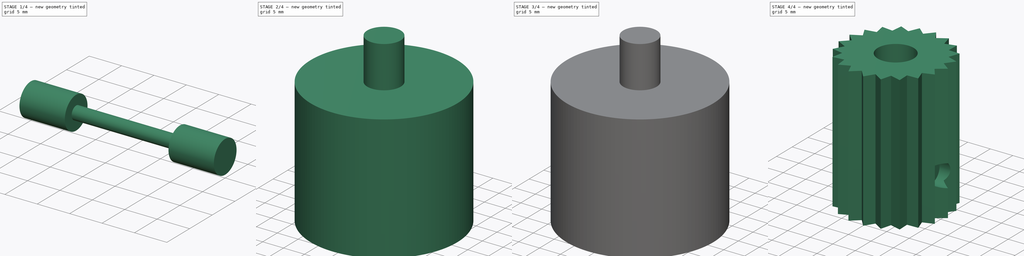
[diagram: build sequence overview — one tinted view per stage of 4, left to right]
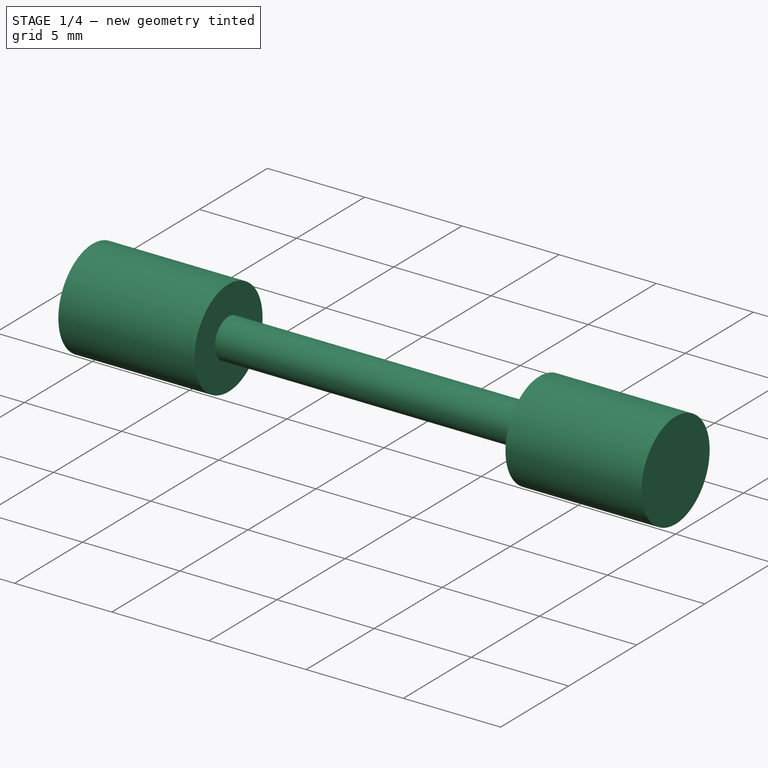
[diagram: stage 1 of 4 — iso view after this stage's code; geometry added in this stage tinted green]
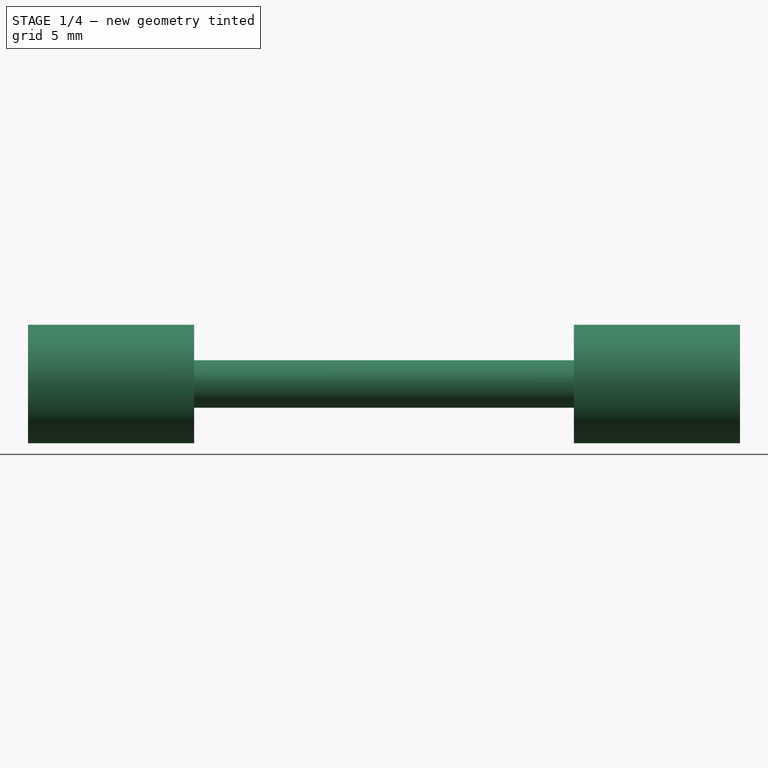
[diagram: stage 1 of 4 — front view after this stage's code; geometry added in this stage tinted green]
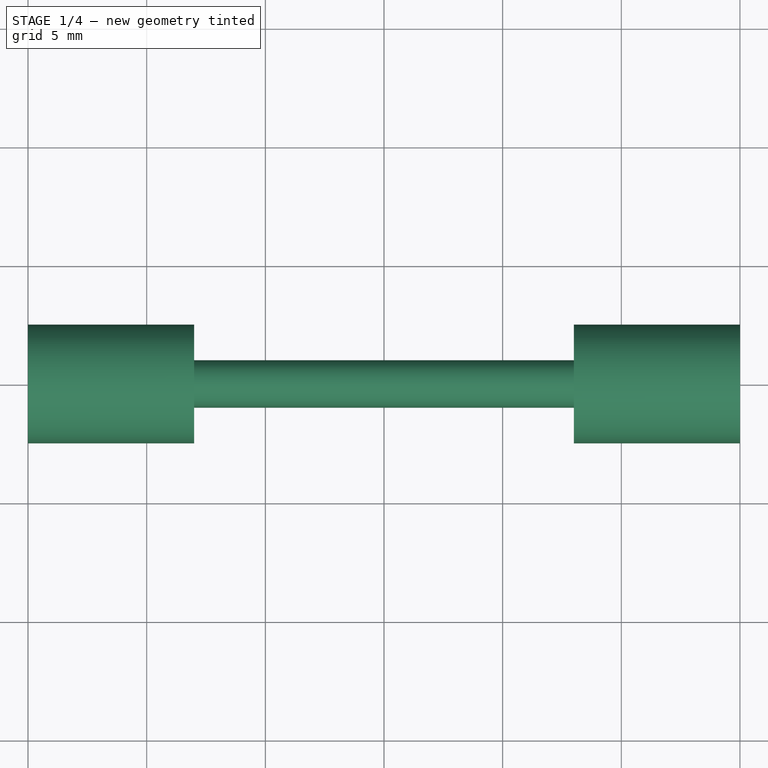
[diagram: stage 1 of 4 — top view after this stage's code; geometry added in this stage tinted green]
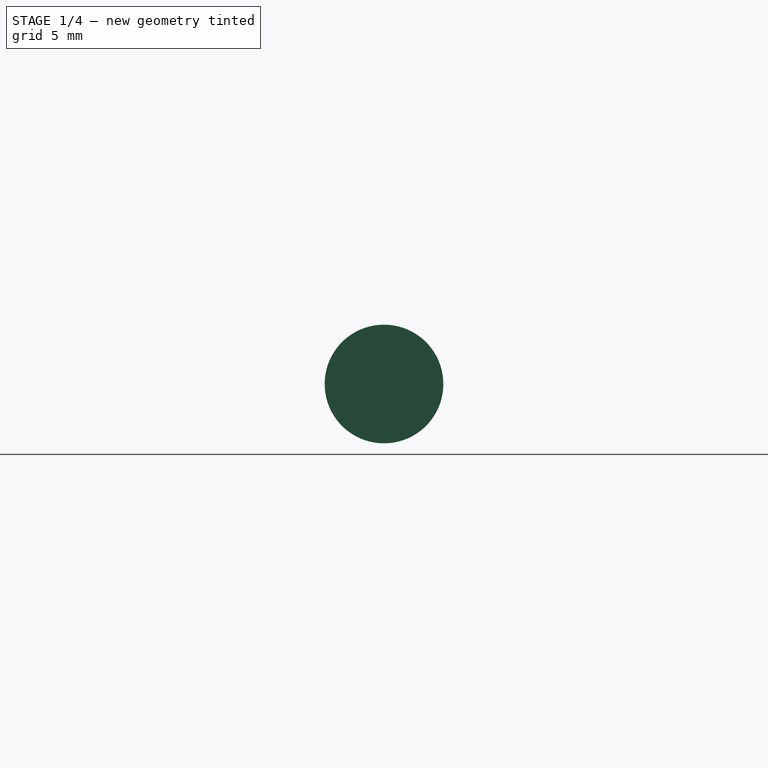
[diagram: stage 1 of 4 — right view after this stage's code; geometry added in this stage tinted green]
FCSTD DOCUMENT  (FreeCAD 0.20R29410 (Git))
Label: AgarrePolea
License: All rights reserved
LicenseURL: http://en.wikipedia.org/wiki/All_rights_reserved
objects: Sketcher::SketchObject×5, Part::Cut×4, Part::Cylinder×3, Part::RuledSurface×2, Part::Extrusion×2, Part::Fuse×2, Part::Sweep×2, Image::ImagePlane×1, Part::FeaturePython×1, Part::Feature×1
note: 22 computed .brp shape members not serialized (recipe doc carries the construction recipe); baked Part::Feature solids carry a one-line shape summary decoded from their .brp

FEATURE [Sketcher::SketchObject] Sketch001
  FullyConstrained = true
  Placement = pos=(0,0,0) rot=(0.57735,0.57735,0.57735;2.0944rad)
  sketch-geometry (2):
    g0: GeomPoint X=0 Y=15 Z=0
    g1: Circle CenterX=0 CenterY=15 CenterZ=0 NormalX=0 NormalY=0 NormalZ=1 AngleXU=0 Radius=2.5
  constraints (4):
    c: PointOnObject(g0,g-2)
    c: DistanceY(g-1,g0) = 15
    c: Coincident(g1,g0)
    c: Diameter(g1) = 5
FEATURE [Sketcher::SketchObject] Sketch002
  FullyConstrained = true
  Placement = pos=(0,0,15) rot=(0,0,1;0rad)
  sketch-geometry (4):
    g0: GeomPoint X=-15 Y=0 Z=0
    g1: GeomPoint X=15 Y=0 Z=0
    g2: LineSegment StartX=-15 StartY=0 StartZ=0 EndX=-8 EndY=0 EndZ=0
    g3: LineSegment StartX=15 StartY=0 StartZ=0 EndX=8 EndY=0 EndZ=0
  constraints (10):
    c: PointOnObject(g0,g-1)
    c: PointOnObject(g1,g-1)
    c: DistanceX(g0,g-1) = 15
    c: DistanceX(g-1,g1) = 15
    c: Coincident(g2,g0)
    c: PointOnObject(g2,g-1)
    c: Coincident(g3,g1)
    c: PointOnObject(g3,g-1)
    c: DistanceX(g2,g-1) = 8
    c: DistanceX(g-1,g3) = 8
FEATURE [Part::Sweep] Sweep
  Frenet = false
  Placement = pos=(-8,0,0) rot=(0,0,1;0rad)
  Sections = -> [Sketch001]
  Solid = true
  Spine = -> Sketch002 [Edge1]
  Transition = 1
FEATURE [Sketcher::SketchObject] Sketch003
  FullyConstrained = true
  Placement = pos=(0,0,0) rot=(0.57735,0.57735,0.57735;2.0944rad)
  sketch-geometry (2):
    g0: GeomPoint X=0 Y=15 Z=0
    g1: Circle CenterX=0 CenterY=15 CenterZ=0 NormalX=0 NormalY=0 NormalZ=1 AngleXU=0 Radius=2.5
  constraints (4):
    c: PointOnObject(g0,g-2)
    c: DistanceY(g-1,g0) = 15
    c: Coincident(g1,g0)
    c: Diameter(g1) = 5
FEATURE [Sketcher::SketchObject] Sketch004
  FullyConstrained = true
  Placement = pos=(0,0,15) rot=(0,0,1;0rad)
  sketch-geometry (4):
    g0: GeomPoint X=-15 Y=0 Z=0
    g1: GeomPoint X=15 Y=0 Z=0
    g2: LineSegment StartX=-15 StartY=0 StartZ=0 EndX=-8 EndY=0 EndZ=0
    g3: LineSegment StartX=15 StartY=0 StartZ=0 EndX=8 EndY=0 EndZ=0
  constraints (10):
    c: PointOnObject(g0,g-1)
    c: PointOnObject(g1,g-1)
    c: DistanceX(g0,g-1) = 15
    c: DistanceX(g-1,g1) = 15
    c: Coincident(g2,g0)
    c: PointOnObject(g2,g-1)
    c: Coincident(g3,g1)
    c: PointOnObject(g3,g-1)
    c: DistanceX(g2,g-1) = 8
    c: DistanceX(g-1,g3) = 8
FEATURE [Part::Sweep] Sweep001
  Frenet = false
  Placement = pos=(15,0,0) rot=(0,0,1;0rad)
  Sections = -> [Sketch003]
  Solid = true
  Spine = -> Sketch004 [Edge1]
  Transition = 1
FEATURE [Part::Fuse] Fusion001
  Base = -> Sweep
  Placement = pos=(0,0,-6.5) rot=(0,0,1;0rad)
  Tool = -> Sweep001
FEATURE [Part::Cylinder] Cylinder002  label="Cilindro002"
  Angle = 360
  AttacherType = Attacher::AttachEngine3D
  FirstAngle = 0
  Height = 30
  Placement = pos=(-15,0,8.5) rot=(0,1,0;1.5708rad)
  Radius = 1
  SecondAngle = 0
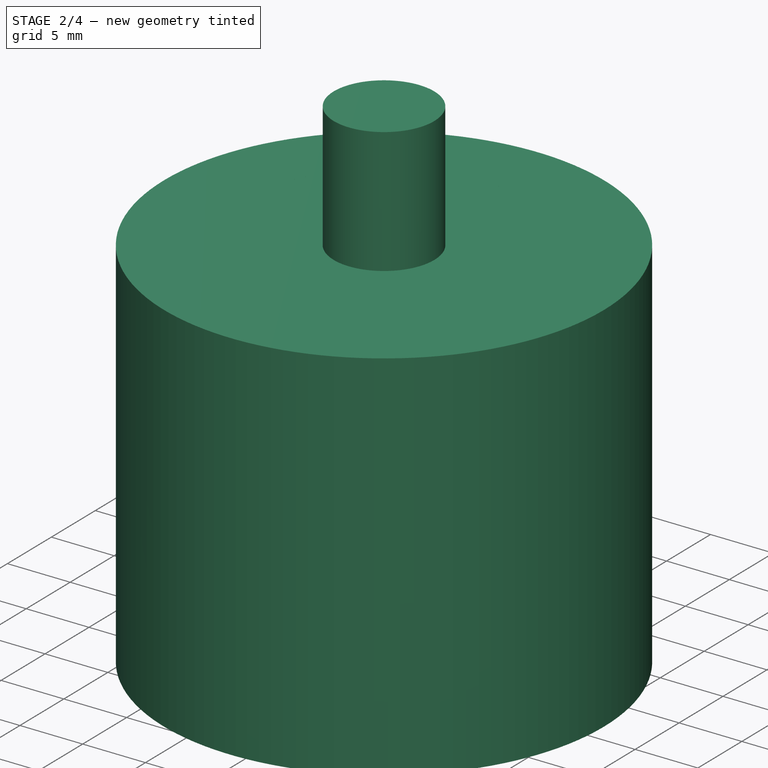
[diagram: stage 2 of 4 — iso view after this stage's code; geometry added in this stage tinted green]
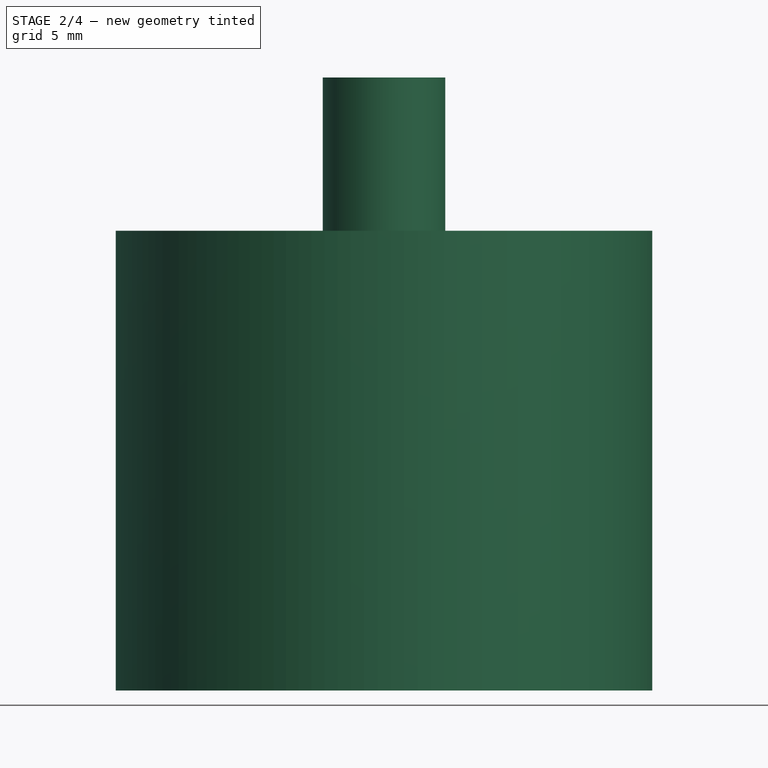
[diagram: stage 2 of 4 — front view after this stage's code; geometry added in this stage tinted green]
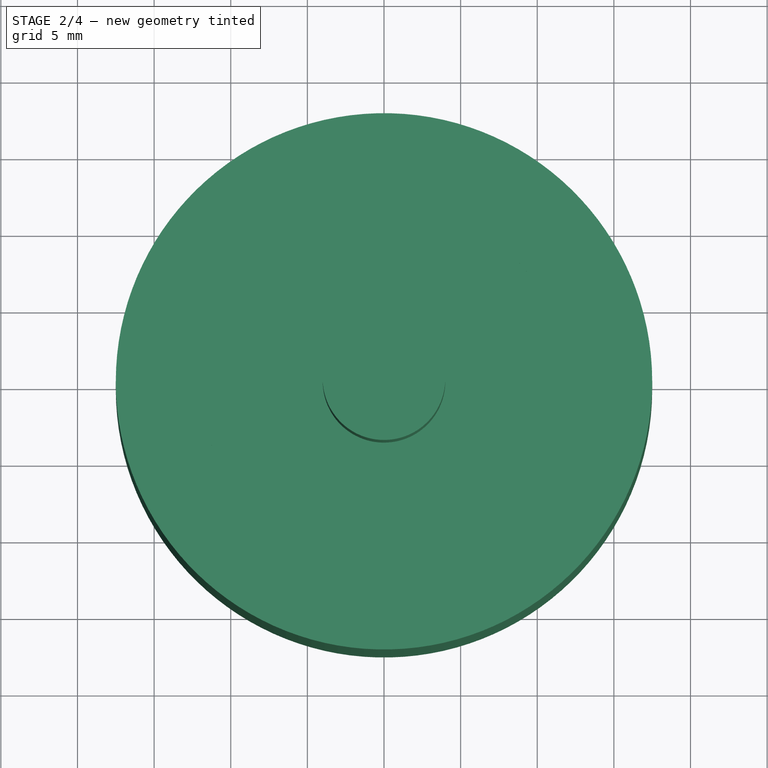
[diagram: stage 2 of 4 — top view after this stage's code; geometry added in this stage tinted green]
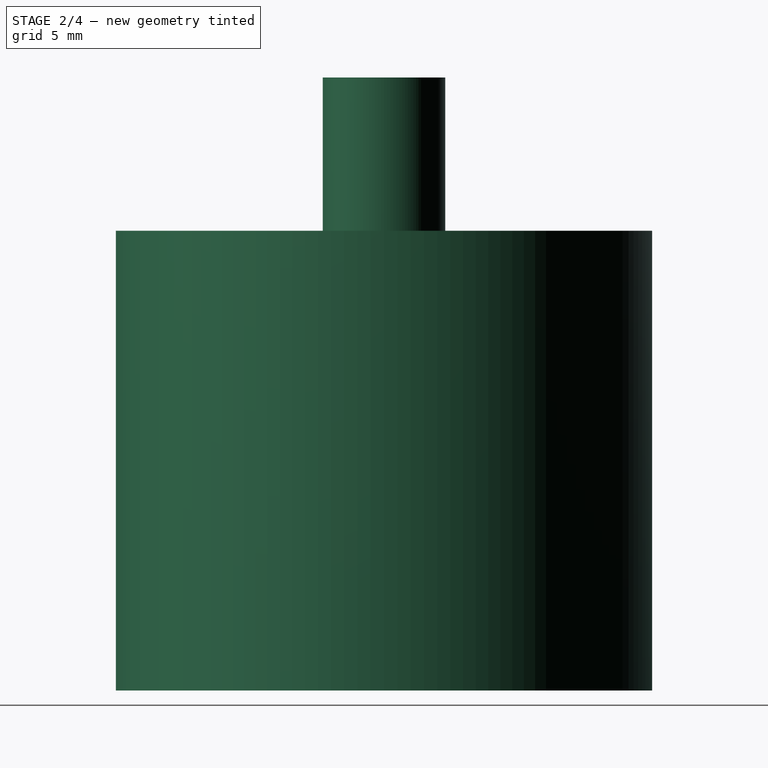
[diagram: stage 2 of 4 — right view after this stage's code; geometry added in this stage tinted green]
FEATURE [Part::RuledSurface] Ruled_Surface001
  Curve1 = -> Sketch [Edge6]
  Curve2 = -> Sketch [Edge5]
  Orientation = 0
FEATURE [Part::Extrusion] Extrude001
  Base = -> Ruled_Surface001
  Dir = (0,0,1)
  DirMode = 0
  FaceMakerClass = Part::FaceMakerBullseye
  LengthFwd = 30
  LengthRev = 0
  Solid = true
  Symmetric = false
FEATURE [Part::Cylinder] Cylinder  label="Cilindro"
  Angle = 360
  AttacherType = Attacher::AttachEngine3D
  FirstAngle = 0
  Height = 30
  Radius = 12
  SecondAngle = 0
FEATURE [Part::Cylinder] Cylinder001  label="Cilindro001"
  Angle = 360
  AttacherType = Attacher::AttachEngine3D
  FirstAngle = 0
  Height = 40
  Radius = 4
  SecondAngle = 0
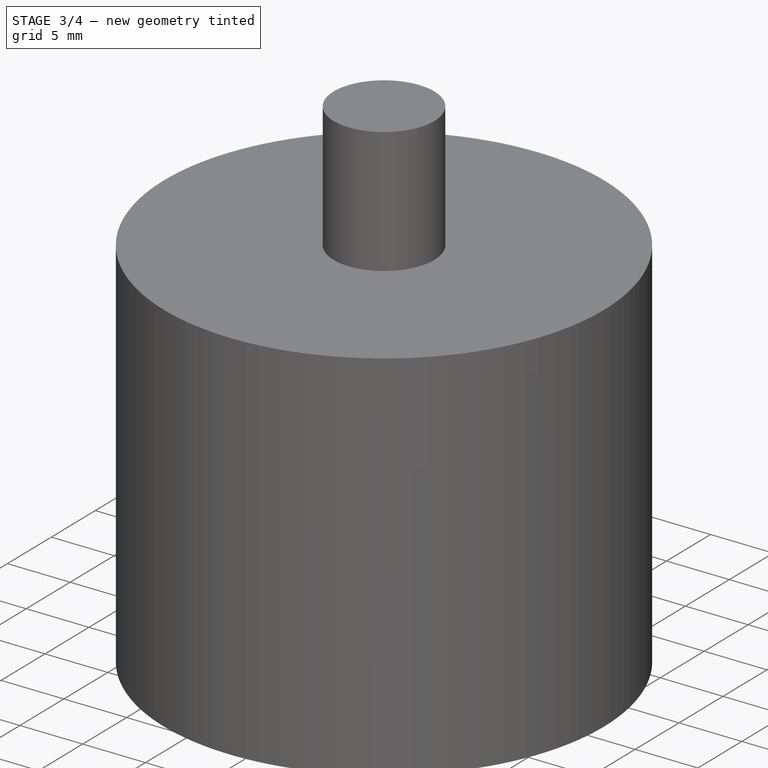
[diagram: stage 3 of 4 — iso view after this stage's code; geometry added in this stage tinted green]
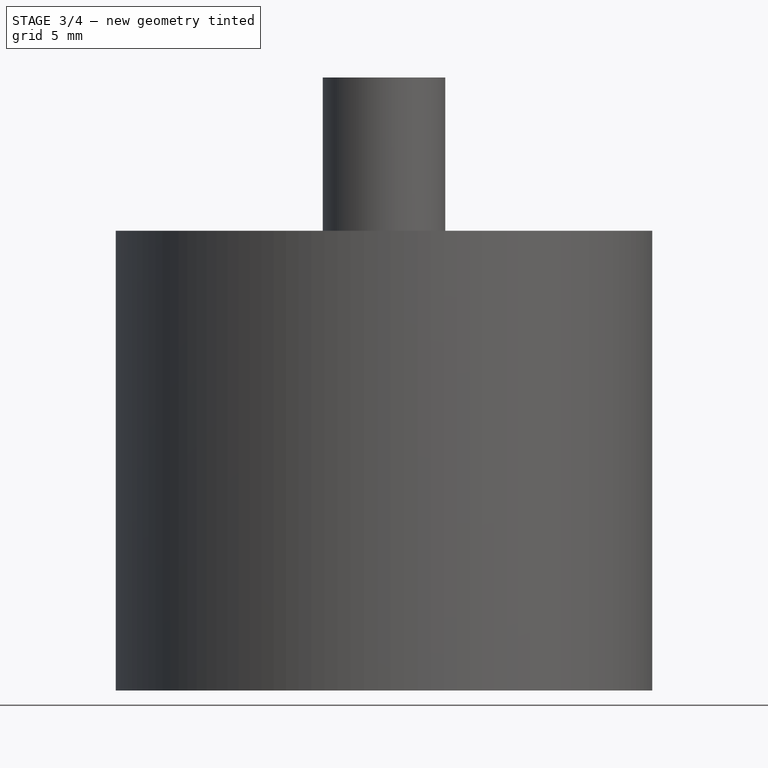
[diagram: stage 3 of 4 — front view after this stage's code; geometry added in this stage tinted green]
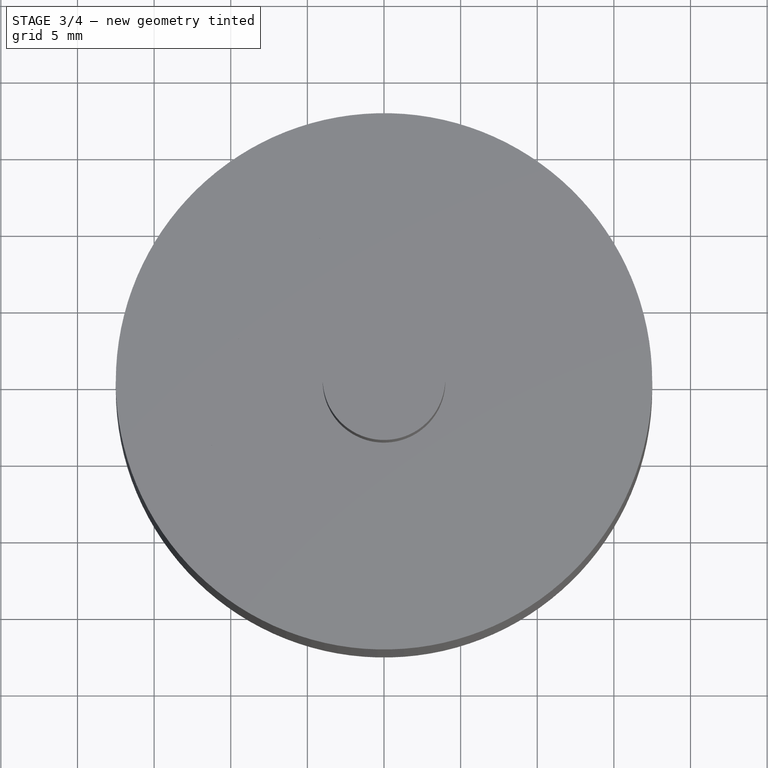
[diagram: stage 3 of 4 — top view after this stage's code; geometry added in this stage tinted green]
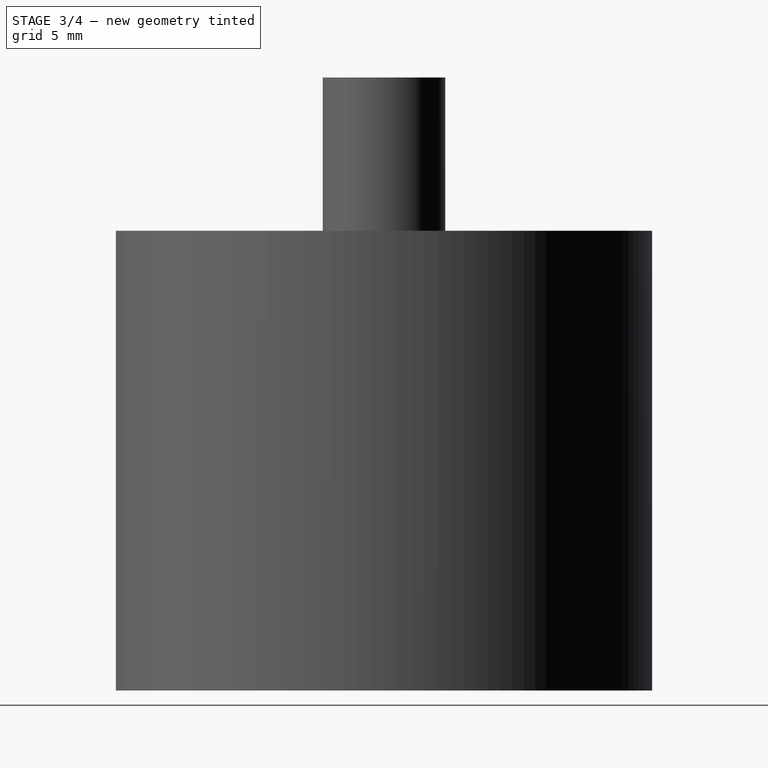
[diagram: stage 3 of 4 — right view after this stage's code; geometry added in this stage tinted green]
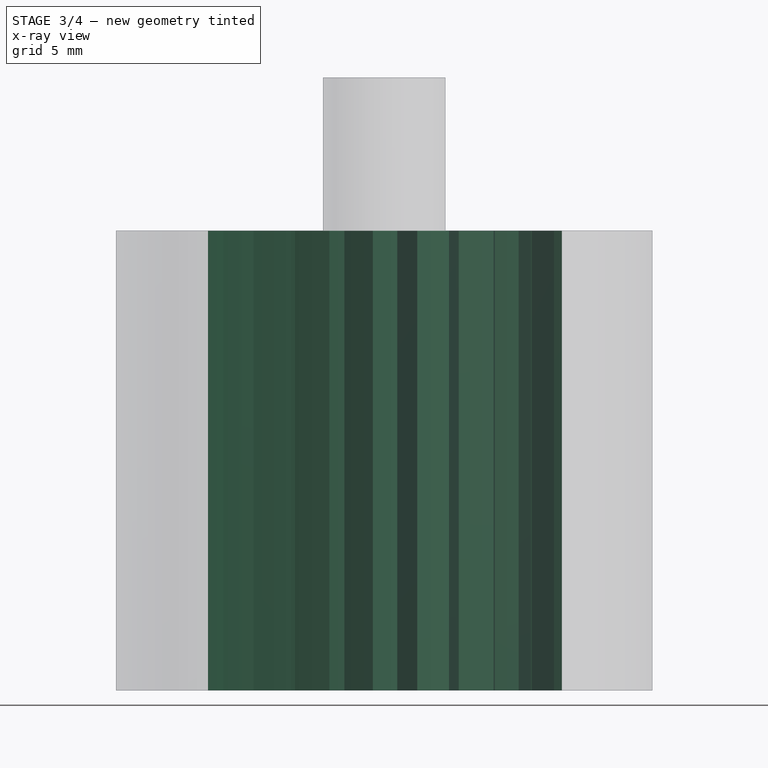
[diagram: stage 3 of 4 — x-ray composite at the front view; earlier geometry ghosted, this stage's added geometry solid]
FEATURE [Sketcher::SketchObject] Sketch
  FullyConstrained = true
  sketch-geometry (12):
    g0: Circle CenterX=0 CenterY=0 CenterZ=0 NormalX=0 NormalY=0 NormalZ=1 AngleXU=0 Radius=148
    g1: Circle CenterX=0 CenterY=0 CenterZ=0 NormalX=0 NormalY=0 NormalZ=1 AngleXU=0 Radius=146
    g2: Circle CenterX=0 CenterY=0 CenterZ=0 NormalX=0 NormalY=0 NormalZ=1 AngleXU=0 Radius=140
    g3: Circle CenterX=0 CenterY=0 CenterZ=0 NormalX=0 NormalY=0 NormalZ=1 AngleXU=0 Radius=28
    g4: Circle CenterX=0 CenterY=0 CenterZ=0 NormalX=0 NormalY=0 NormalZ=1 AngleXU=0 Radius=17.5
    g5: Circle CenterX=0 CenterY=0 CenterZ=0 NormalX=0 NormalY=0 NormalZ=1 AngleXU=0 Radius=11.75
    g6: Circle CenterX=0 CenterY=0 CenterZ=0 NormalX=0 NormalY=0 NormalZ=1 AngleXU=0 Radius=9.75
    g7: LineSegment StartX=0 StartY=0 StartZ=0 EndX=-9.75 EndY=0 EndZ=0
    g8: GeomPoint X=-11.75 Y=1.17116e-05 Z=0
    g9: LineSegment StartX=-11.75 StartY=2.00001 StartZ=0 EndX=-11.75 EndY=-1.99999 EndZ=0
    g10: LineSegment StartX=-11.75 StartY=2.00001 StartZ=0 EndX=-9.75 EndY=0 EndZ=0
    g11: LineSegment StartX=-9.75 StartY=0 StartZ=0 EndX=-11.75 EndY=-1.99999 EndZ=0
  constraints (27):
    c: Coincident(g0,g-1)
    c: Radius(g0) = 148
    c: Coincident(g1,g0)
    c: Coincident(g2,g0)
    c: Radius(g1) = 146
    c: Radius(g2) = 140
    c: Coincident(g3,g0)
    c: Radius(g3) = 28
    c: Coincident(g4,g0)
    c: Diameter(g4) = 35
    c: Coincident(g5,g0)
    c: Diameter(g5) = 23.5
    c: Coincident(g6,g0)
    c: Diameter(g6) = 19.5
    c: Coincident(g7,g0)
    c: PointOnObject(g7,g6)
    c: Horizontal(g7)
    c: PointOnObject(g8,g5)
    c: Distance(g7,g8) = 2
    c: Vertical(g9)
    c: DistanceY(g8,g9) = 2
    c: DistanceY(g9,g9) = 4
    c: Vertical(g9,g8)
    c: Coincident(g10,g9)
    c: Coincident(g10,g7)
    c: Coincident(g11,g7)
    c: Coincident(g11,g9)
FEATURE [Image::ImagePlane] ImagePlane
  Placement = pos=(0.2,-12.2,0) rot=(0,0,1;0rad)
  XSize = 110.546
  YSize = 161.841
FEATURE [Part::RuledSurface] Ruled_Surface
  Curve1 = -> Sketch [Edge11]
  Curve2 = -> Sketch [Edge10]
  Orientation = 0
FEATURE [Part::Extrusion] Extrude
  Base = -> Ruled_Surface
  Dir = (0,0,1)
  DirMode = 0
  FaceMakerClass = Part::FaceMakerBullseye
  LengthFwd = 30
  LengthRev = 0
  Solid = true
  Symmetric = false
FEATURE [Part::FeaturePython] Array  # Draft array (typed FeaturePython)
  AlwaysSyncPlacement = false
  Angle = 360
  ArrayType = 1
  Axis = (0,0,1)
  Base = -> Extrude
  Center = (0,0,0)
  Count = 21
  ExpandArray = false
  Fuse = true
  IntervalAxis = (0,0,0)
  IntervalX = (50,0,0)
  IntervalY = (0,50,0)
  IntervalZ = (0,0,50)
  NumberCircles = 3
  NumberPolar = 21
  NumberX = 2
  NumberY = 2
  NumberZ = 1
  PlacementList = 21 placements: [(0,0,0),(0,0,0),(0,0,0),(0,0,0),(0,0,0),(0,0,0),(0,0,0),(0,0,0),(0,0,0),(0,0,0),(0,0,0),(0,0,0),(0,0,0),(0,0,0),(0,0,0),(0,0,0),(0,0,0),(0,0,0),(0,0,0),(0,0,0),(0,0,0)]
  RadialDistance = 50
  ScaleList = (21) [(1,1,1),(1,1,1),(1,1,1),(1,1,1),(1,1,1),(1,1,1),(1,1,1),(1,1,1),(1,1,1),(1,1,1),(1,1,1),(1,1,1),(1,1,1),(1,1,1),(1,1,1),(1,1,1),(1,1,1),(1,1,1),(1,1,1),(1,1,1),(1,1,1)]
  Symmetry = 1
  TangentialDistance = 25
FEATURE [Part::Fuse] Fusion
  Base = -> Array
  Tool = -> Extrude001
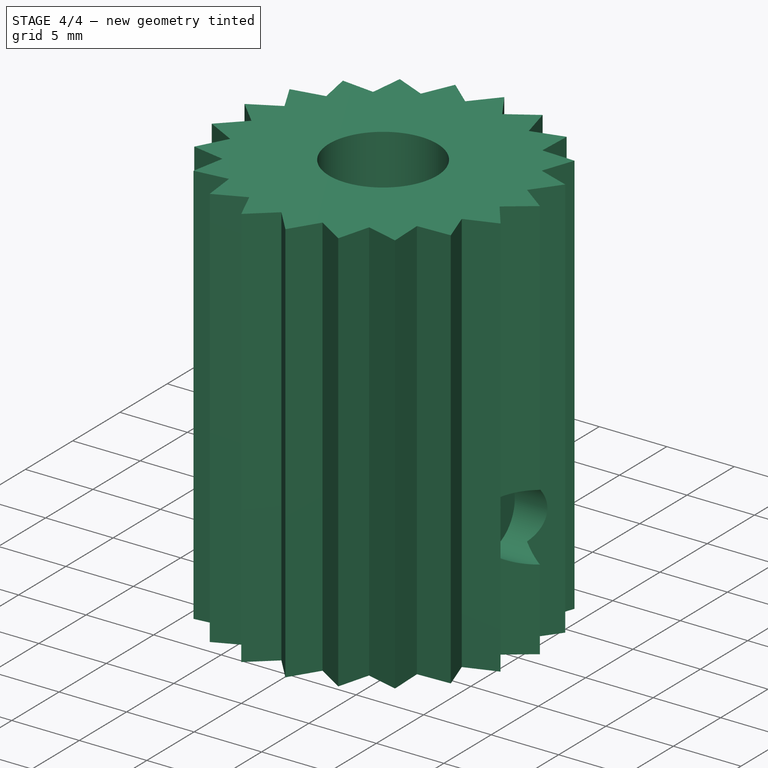
[diagram: stage 4 of 4 — iso view after this stage's code; geometry added in this stage tinted green]
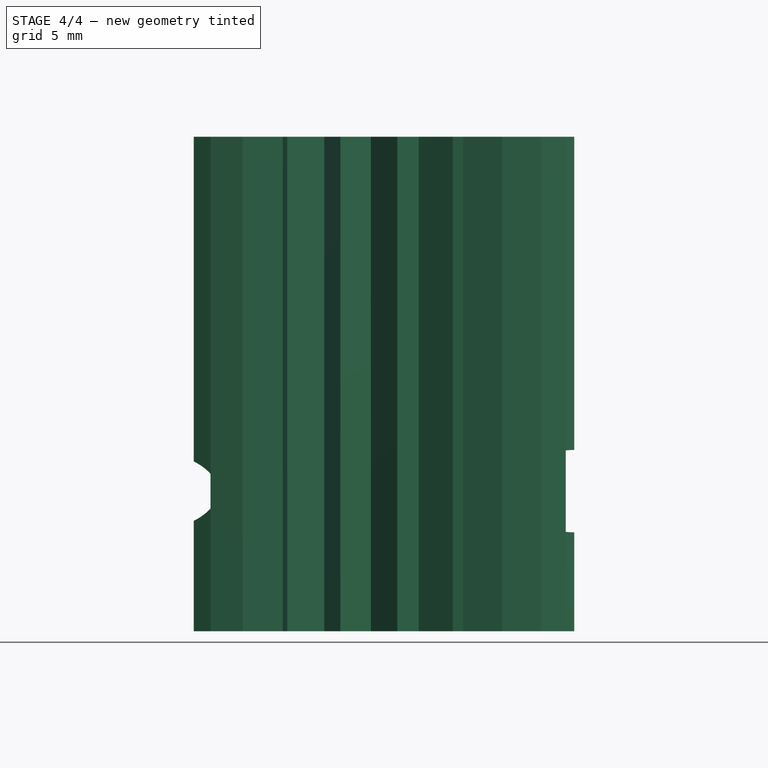
[diagram: stage 4 of 4 — front view after this stage's code; geometry added in this stage tinted green]
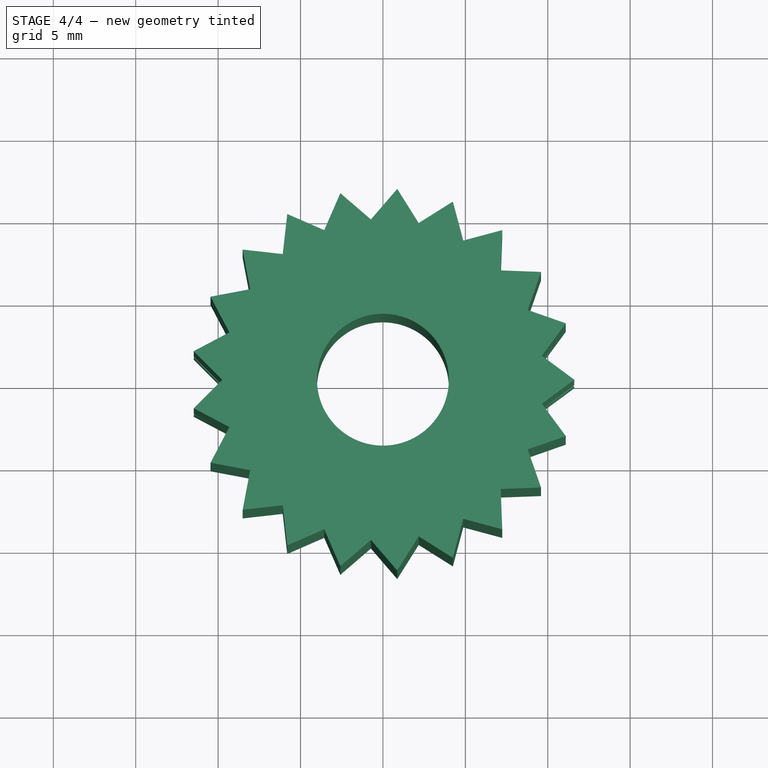
[diagram: stage 4 of 4 — top view after this stage's code; geometry added in this stage tinted green]
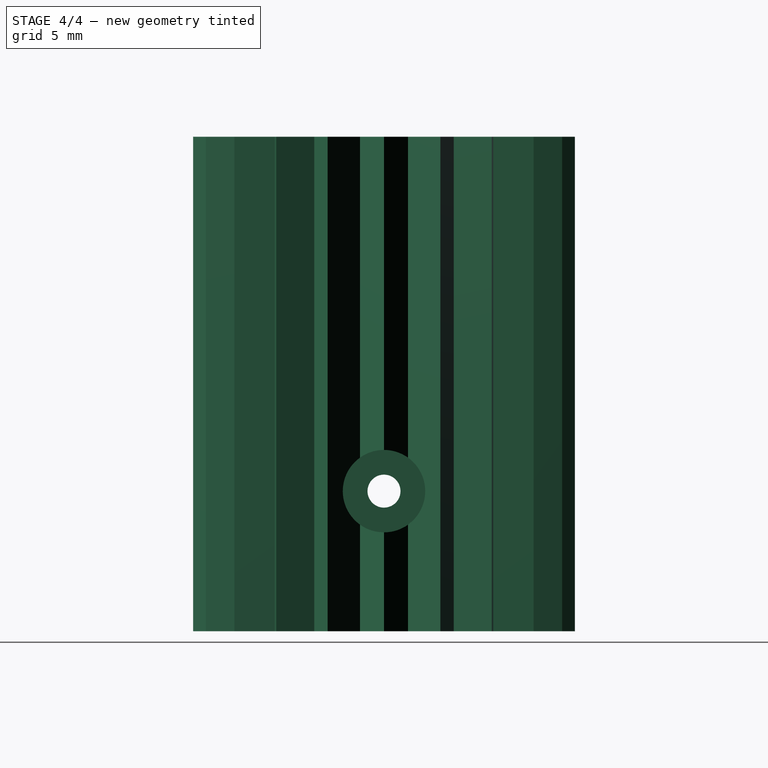
[diagram: stage 4 of 4 — right view after this stage's code; geometry added in this stage tinted green]
FEATURE [Part::Cut] Cut
  Base = -> Cylinder
  Tool = -> Fusion
FEATURE [Part::Cut] Cut001
  Base = -> Cut
  Tool = -> Cylinder001
FEATURE [Part::Cut] Cut002
  Base = -> Cut001
  Tool = -> Fusion001
FEATURE [Part::Cut] Cut003
  Base = -> Cut002
  Tool = -> Cylinder002
FEATURE [Part::Feature] Cut003_solid  label="Cut003 (Solid)"
  shape: bbox 23.09 x 23.16 x 30 mm, 55 faces (baked)
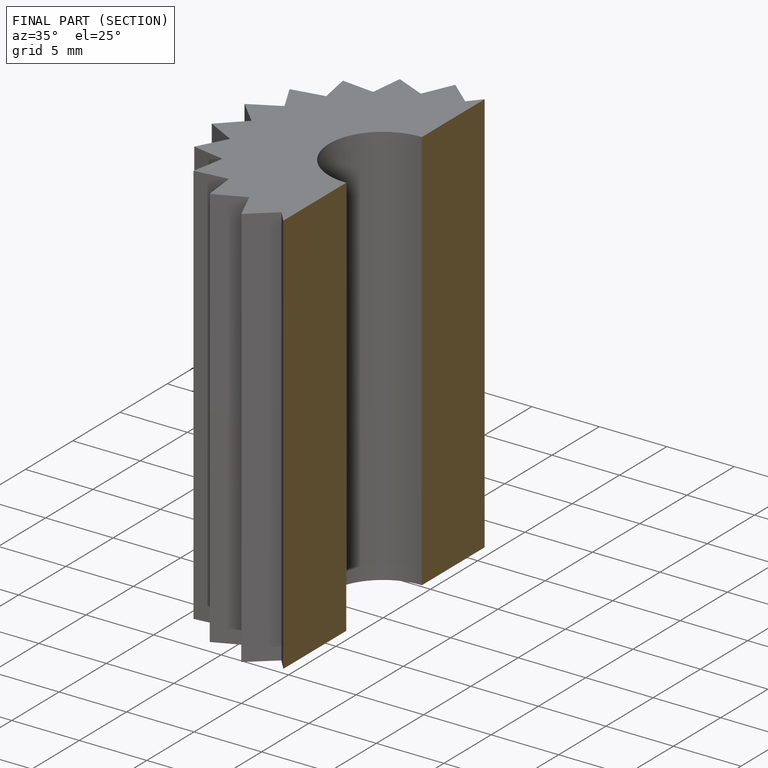
[diagram: finished part — half-section view (interior)]
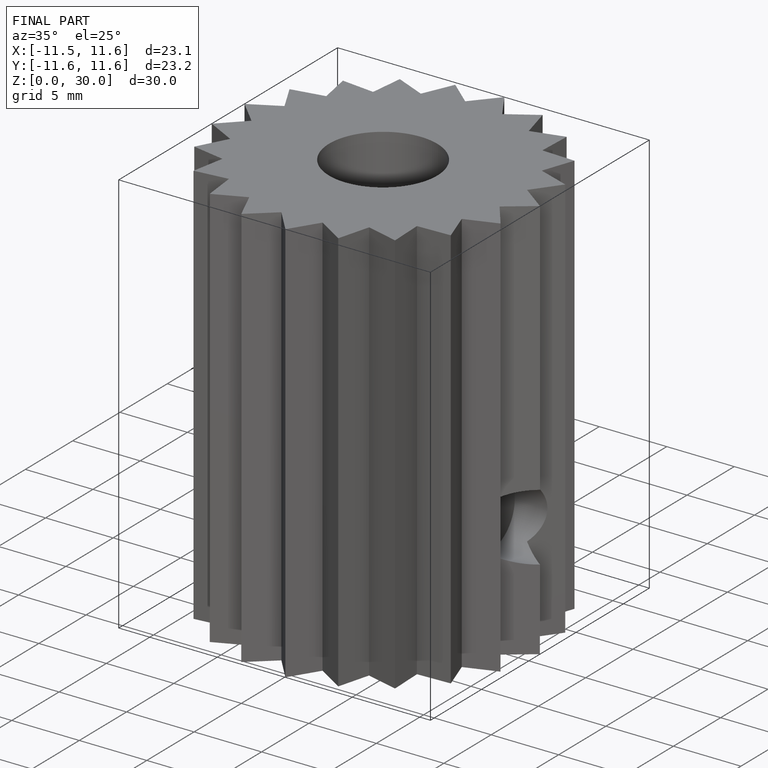
[diagram: finished part — iso view with bounding-box wireframe]
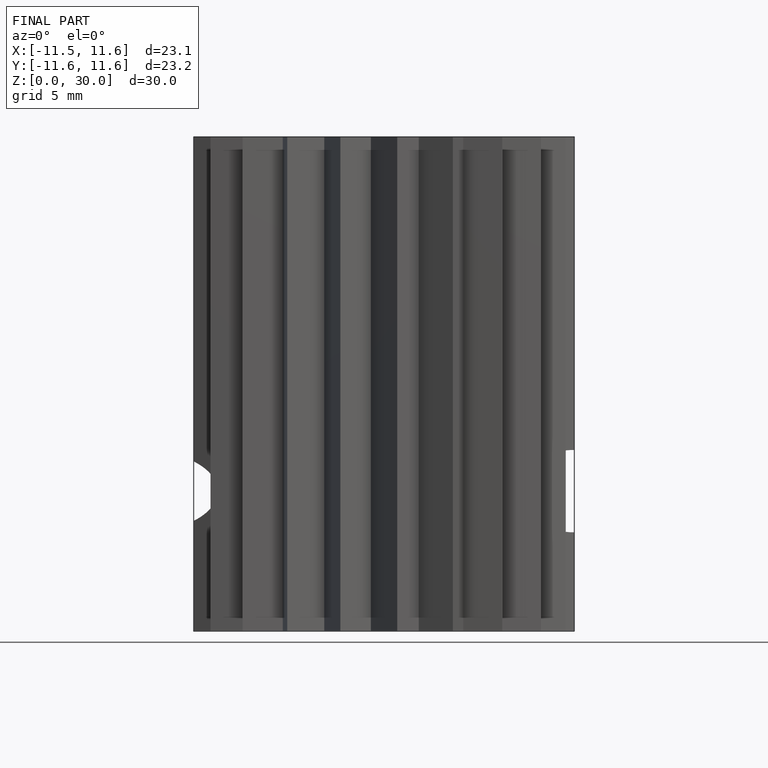
[diagram: finished part — front view with bounding-box wireframe]
